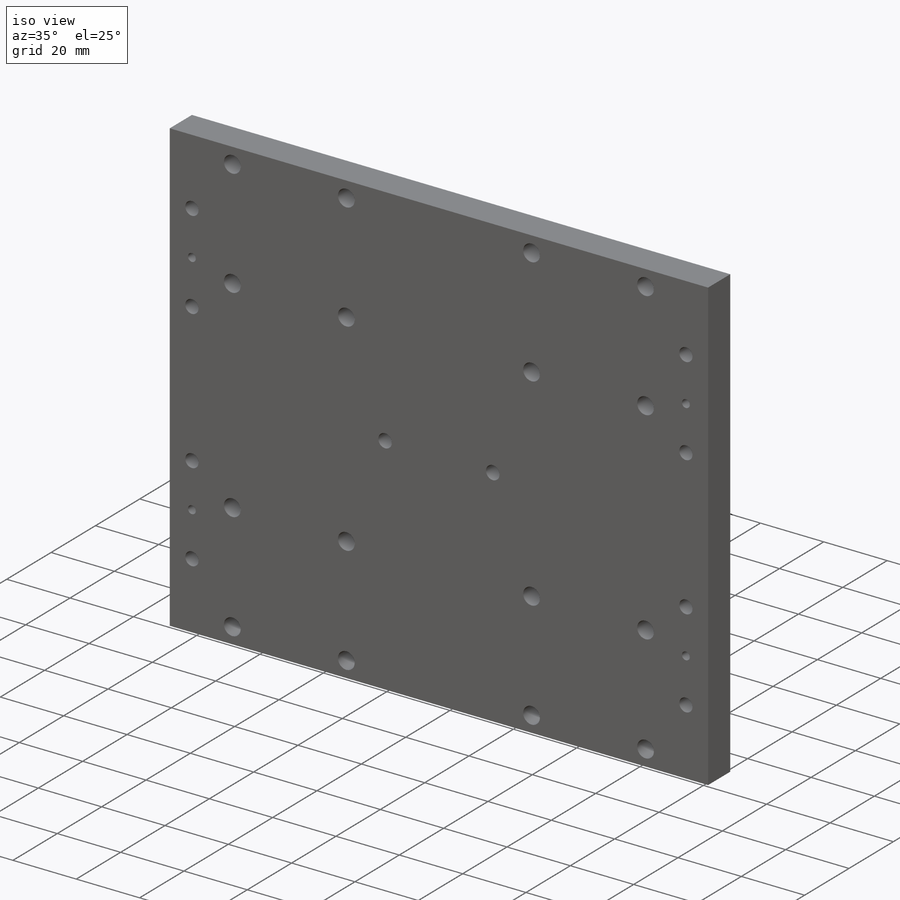
[diagram: iso view]
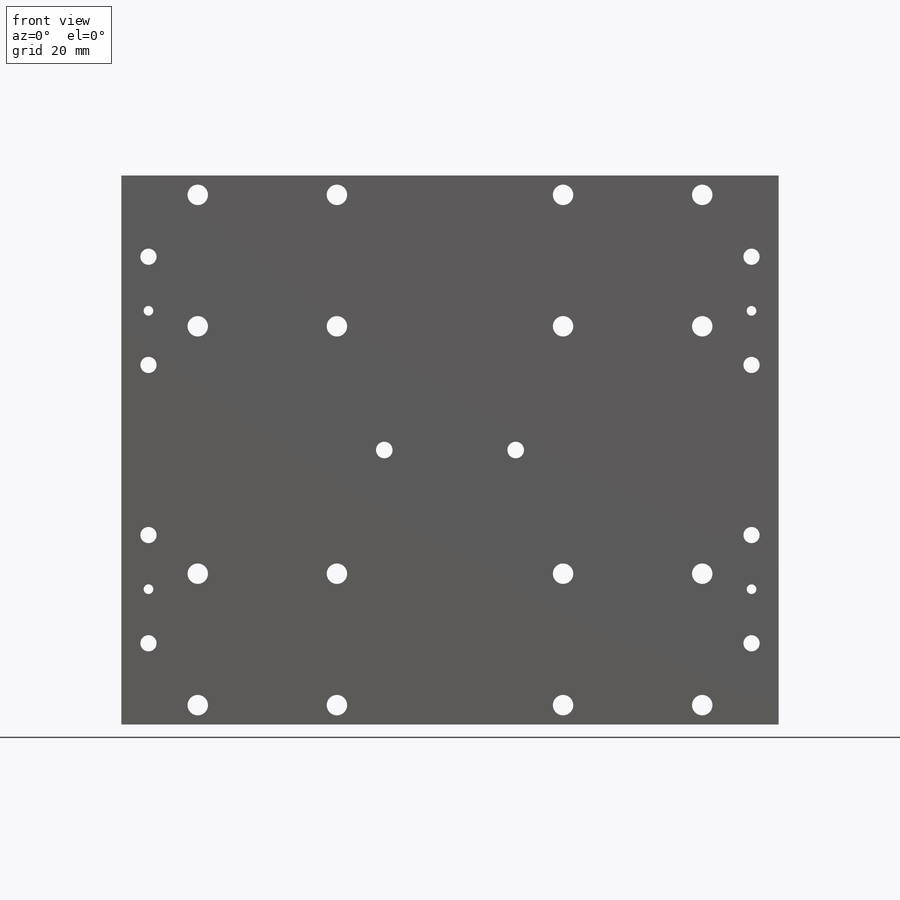
[diagram: front view]
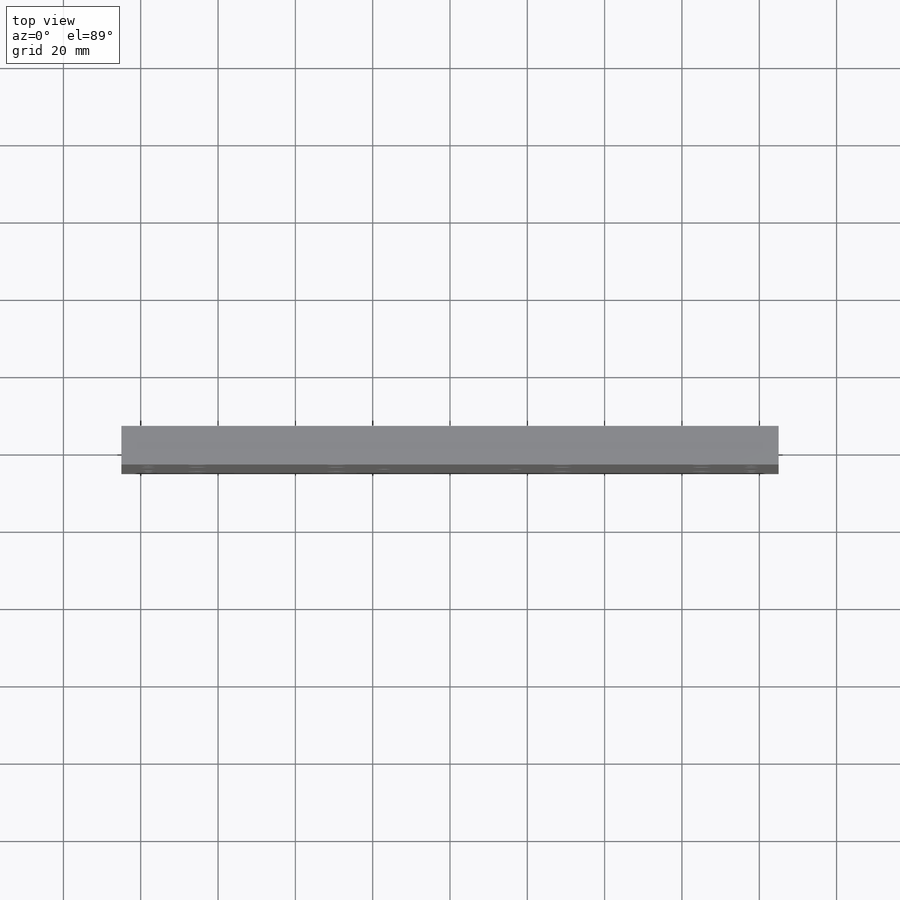
[diagram: top view]
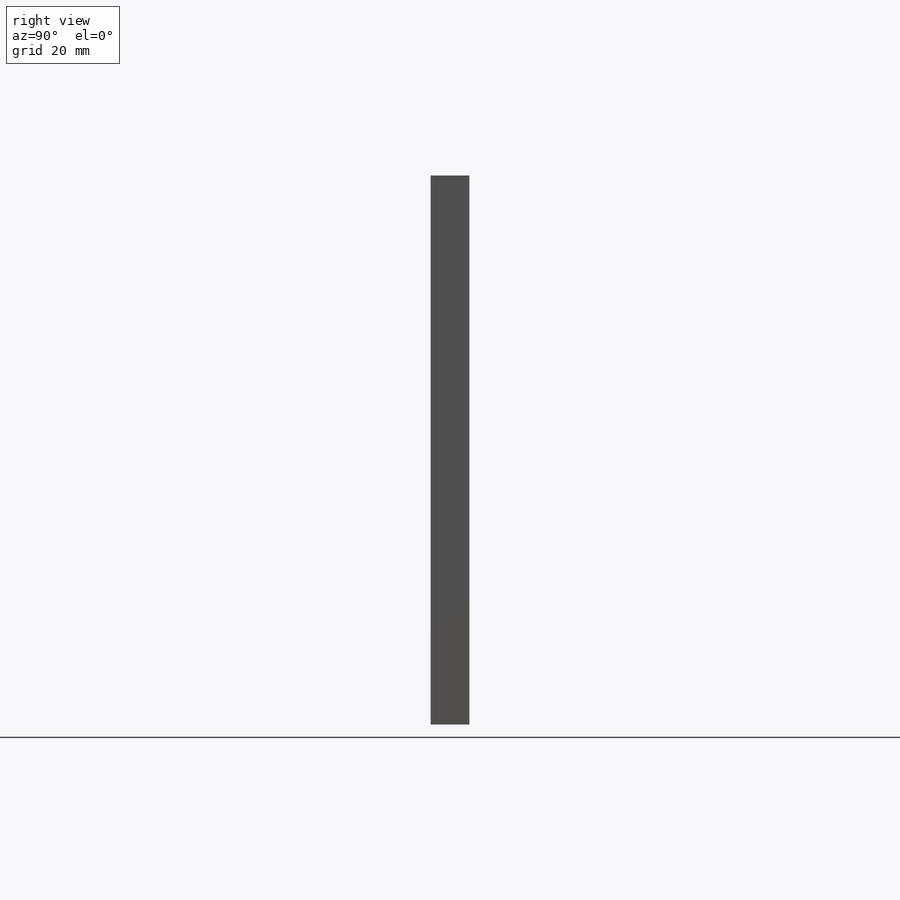
[diagram: right view]
SOLIDWORKS PART (.sldprt)
format: sldprt  version: not decoded by parser v0  size: 347,136 bytes
history: native  units: mm
features: sketch x8, mirror x4, hole x3, thread x2, material x1, extrude x1, cut_extrude x1 (+12 scaffold rows collapsed)
feature tree (32):
  scaffold x12  (default folders/planes/origin — collapsed)
  material  "Material <not specified>"
  sketch  "Sketch1"  dims[D1=170.0mm D2=142.0mm]
  extrude  "Boss-Extrude1"  Depth=10mm
  hole  "M5 Clearance Hole1"  Diameter=5.3mm Depth=10mm
  sketch  "Sketch8"  dims[c1.D1=37.5mm c1.D2=22.0mm c1.D3=34.0mm c1.D4=36.0mm c2.D1=5.0mm c2.D2=19.75mm]
  sketch  "Sketch7"  dims[hole-wizard template sketch: 59 standard entries collapsed; hole parameters kept: c18.Thru Hole Dia.=5.3mm c18.Thru Hole Depth=10.0mm]
  mirror  "Mirror2"
  mirror  "Mirror3"
  hole  "M4 Clearance Hole1"  Diameter=4.3mm Depth=10mm
  sketch  "Sketch10"  dims[D1=17.0mm D2=17.0mm]
  sketch  "Sketch9"  dims[hole-wizard template sketch: 60 standard entries collapsed; hole parameters kept: c18.Thru Hole Depth=10.0mm]
  hole  "M5x0.8 Tapped Hole1"  Diameter=4.2mm Depth=14mm
  sketch  "Sketch12"  dims[D1=7.0mm D2=22.0mm D3=50.0mm]
  sketch  "Sketch11"  dims[hole-wizard template sketch: 50 standard entries collapsed; hole parameters above]
  thread  "Hole Thread1"  Diameter=10mm  [1 undecoded]
  thread  "Hole Thread2"  Diameter=10mm  [1 undecoded]
  sketch  "Sketch6"  dims[c1.D3=5.1mm c1.D4=2.5mm c1.D5=5.1mm c1.D6=5.1mm c1.D7=5.1mm c1.D8=2.0mm c1.D9=5.1mm c1.D12=5.1mm c1.D14=5.1mm c2.D9=5.1mm c2.D11=5.1mm c2.D14=5.1mm c2.D1=7.0mm c2.D2=7.0mm c3.D9=10.0mm c3.D10=22.5mm c3.D11=35.0mm c3.D12=35.0mm c3.D13=22.5mm c3.D14=10.0mm c4.D9=25.0mm c4.D10=36.0mm c4.D11=50.0mm c4.D12=25.0mm c4.D13=37.5mm c4.D14=50.0mm]
  cut_extrude  "Cut-Extrude5"  [1 undecoded]
  mirror  "Mirror1"
  mirror  "Mirror4"
decode coverage: 14 of 19 modeling features carry decoded parameters
note: ~ marks probable driven/reference dimensions
note: 3 parameter values undecoded
note: suppression state not decoded; provenance and decode notes live in map.json
